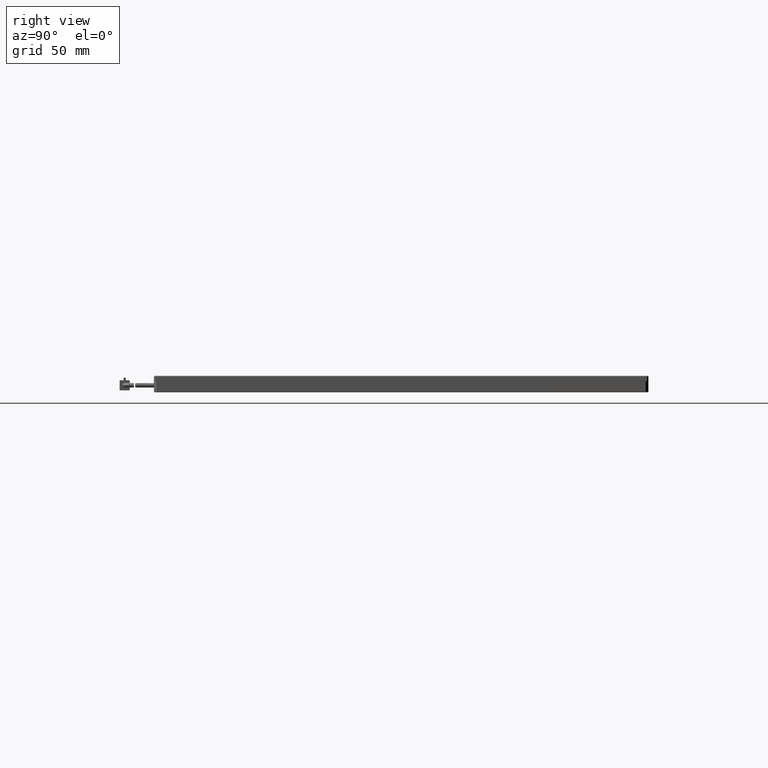
[diagram: clean part render]
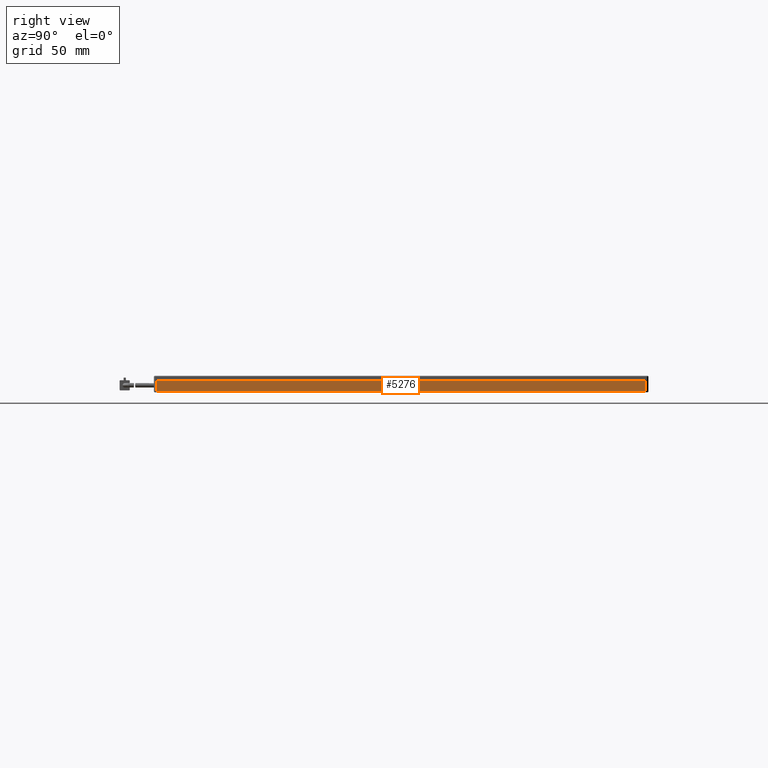
[diagram: same view with one face highlighted and labeled with its STEP entity id]
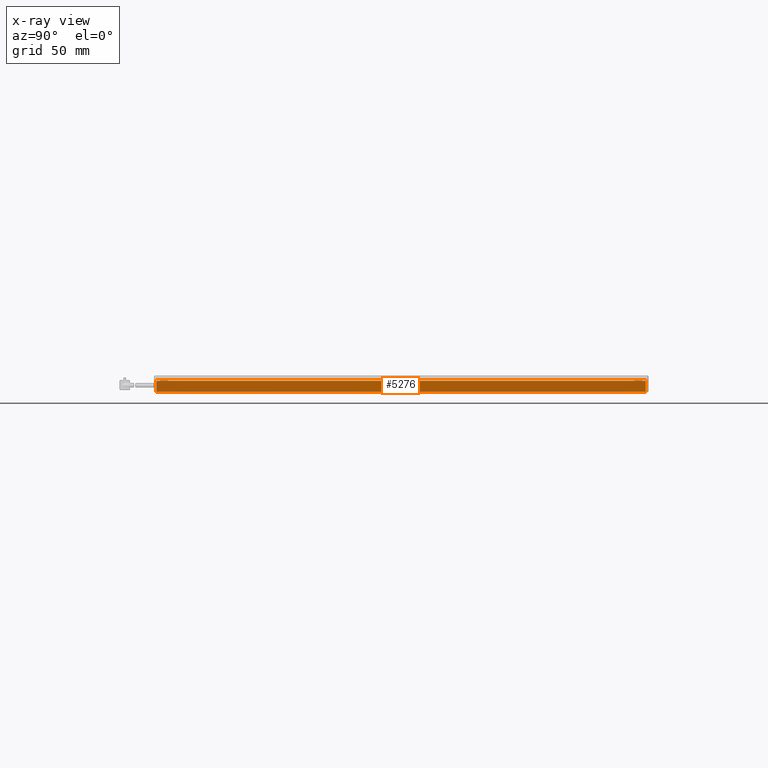
[diagram: x-ray of the same camera — body ghosted, the highlighted face saturated]
A machine part, right view. The second image highlights one B-rep face of the part: STEP entity #5276.
The next image is the same camera in x-ray: the body ghosted, the highlighted face saturated — about 0% of this face is hidden behind the body in this view.
In plain terms, the highlighted planar face has unit normal (-1, 0, 0).
Its self-contained STEP definition (entity closure, byte-faithful):
#146 = ORIENTED_EDGE ( 'NONE', *, *, #2327, .F. ) ;
#386 = VERTEX_POINT ( 'NONE', #9615 ) ;
#458 = VECTOR ( 'NONE', #21967, 1000.000000000000000 ) ;
#463 = VERTEX_POINT ( 'NONE', #13446 ) ;
#2327 = EDGE_CURVE ( 'NONE', #463, #386, #14030, .T. ) ;
#2602 = LINE ( 'NONE', #4297, #14061 ) ;
#4048 = DIRECTION ( 'NONE',  ( -1.000000000000000000, 0.0000000000000000000, 0.0000000000000000000 ) ) ;
#4297 = CARTESIAN_POINT ( 'NONE',  ( 160.8515982014623100, -172.5770270270269300, 4.250000000000000000 ) ) ;
#5160 = VECTOR ( 'NONE', #12940, 1000.000000000000000 ) ;
#5276 = ADVANCED_FACE ( 'NONE', ( #10798 ), #16127, .F. ) ;
#5407 = CARTESIAN_POINT ( 'NONE',  ( 160.8515982014623100, -174.5770270270269300, -4.250000000000000000 ) ) ;
#5934 = CARTESIAN_POINT ( 'NONE',  ( 160.8515982014623100, -174.5770270270269300, 4.250000000000000000 ) ) ;
#8494 = LINE ( 'NONE', #5407, #15980 ) ;
#8793 = ORIENTED_EDGE ( 'NONE', *, *, #11380, .F. ) ;
#9615 = CARTESIAN_POINT ( 'NONE',  ( 160.8515982014623100, 213.4229729729730100, -4.250000000000003600 ) ) ;
#9766 = EDGE_CURVE ( 'NONE', #21556, #463, #19015, .T. ) ;
#10590 = ORIENTED_EDGE ( 'NONE', *, *, #9766, .F. ) ;
#10798 = FACE_OUTER_BOUND ( 'NONE', #19795, .T. ) ;
#10820 = CARTESIAN_POINT ( 'NONE',  ( 160.8515982014623100, -172.5770270270269300, -4.250000000000001800 ) ) ;
#10972 = DIRECTION ( 'NONE',  ( 0.0000000000000000000, 0.0000000000000000000, 1.000000000000000000 ) ) ;
#11380 = EDGE_CURVE ( 'NONE', #18786, #21556, #2602, .T. ) ;
#12536 = DIRECTION ( 'NONE',  ( 0.0000000000000000000, 1.000000000000000000, -0.0000000000000000000 ) ) ;
#12940 = DIRECTION ( 'NONE',  ( 0.0000000000000000000, 1.000000000000000000, -0.0000000000000000000 ) ) ;
#13446 = CARTESIAN_POINT ( 'NONE',  ( 160.8515982014623100, 213.4229729729730100, 4.250000000000000000 ) ) ;
#13629 = EDGE_CURVE ( 'NONE', #18786, #386, #8494, .T. ) ;
#14030 = LINE ( 'NONE', #15096, #458 ) ;
#14061 = VECTOR ( 'NONE', #21363, 1000.000000000000000 ) ;
#14560 = CARTESIAN_POINT ( 'NONE',  ( 160.8515982014623100, -174.5770270270269300, 4.250000000000000000 ) ) ;
#15096 = CARTESIAN_POINT ( 'NONE',  ( 160.8515982014623100, 213.4229729729729600, 4.250000000000000000 ) ) ;
#15612 = CARTESIAN_POINT ( 'NONE',  ( 160.8515982014623100, -172.5770270270269300, 4.250000000000000000 ) ) ;
#15980 = VECTOR ( 'NONE', #12536, 1000.000000000000000 ) ;
#16127 = PLANE ( 'NONE',  #16446 ) ;
#16362 = ORIENTED_EDGE ( 'NONE', *, *, #13629, .T. ) ;
#16446 = AXIS2_PLACEMENT_3D ( 'NONE', #14560, #4048, #10972 ) ;
#18786 = VERTEX_POINT ( 'NONE', #10820 ) ;
#19015 = LINE ( 'NONE', #5934, #5160 ) ;
#19795 = EDGE_LOOP ( 'NONE', ( #16362, #146, #10590, #8793 ) ) ;
#21363 = DIRECTION ( 'NONE',  ( 0.0000000000000000000, 0.0000000000000000000, 1.000000000000000000 ) ) ;
#21556 = VERTEX_POINT ( 'NONE', #15612 ) ;
#21967 = DIRECTION ( 'NONE',  ( -0.0000000000000000000, -0.0000000000000000000, -1.000000000000000000 ) ) ;